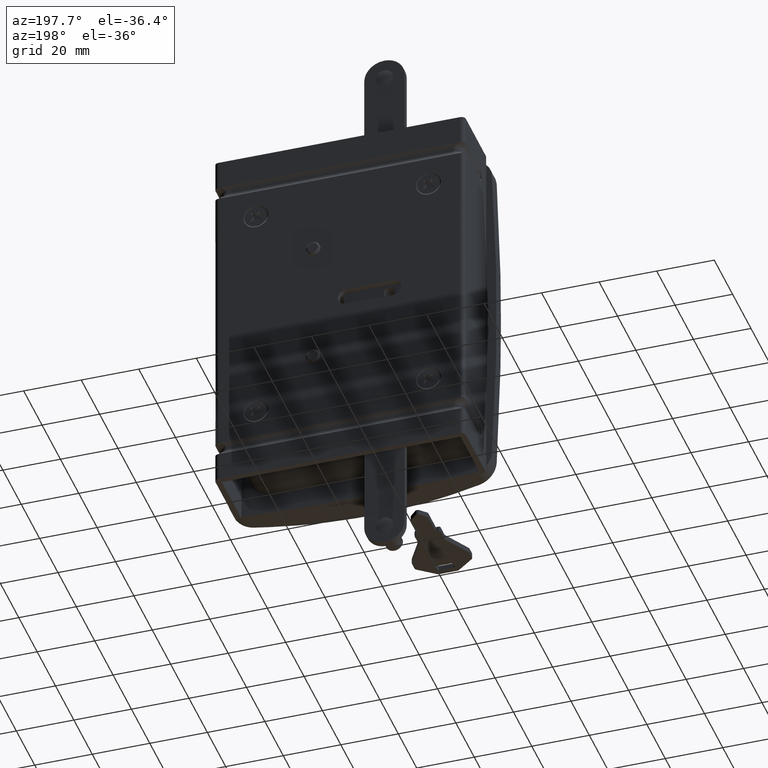
[diagram: clean part render]
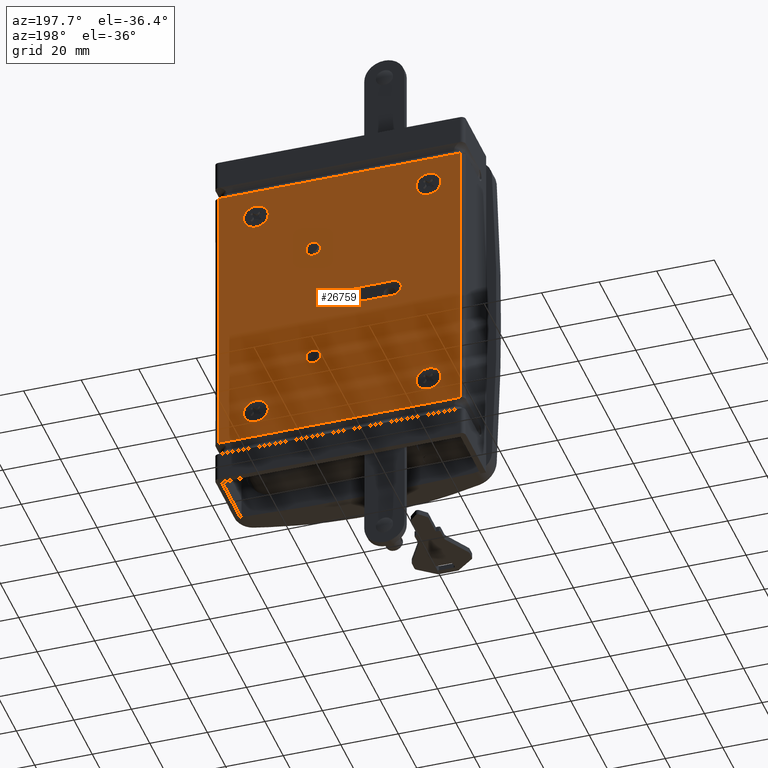
[diagram: same view with one face highlighted and labeled with its STEP entity id]
A machine part, auxiliary view. The second image highlights one B-rep face of the part: STEP entity #26759.
In plain terms, the highlighted face is a freeform B-spline surface patch.
Its self-contained STEP definition (entity closure, byte-faithful):
#16250=CARTESIAN_POINT('',(19.081600212873330,23.999999425808870,-42.998950786445349));
#16251=VERTEX_POINT('',#16250);
#16257=CARTESIAN_POINT('',(16.000007999999902,24.0,-44.299992000000110));
#16258=VERTEX_POINT('',#16257);
#16259=CARTESIAN_POINT('',(16.000007999999902,24.0,-44.299992000000110));
#16260=CARTESIAN_POINT('',(16.608504569310259,23.999999886619250,-44.300706942005988));
#16261=CARTESIAN_POINT('',(17.752993200122820,23.999999673367309,-44.052696056254739));
#16262=CARTESIAN_POINT('',(18.707482801743730,23.999999495517962,-43.384016632717334));
#16263=CARTESIAN_POINT('',(19.081600212873330,23.999999425808870,-42.998950786445349));
#16264=B_SPLINE_CURVE_WITH_KNOTS('',3,(#16259,#16260,#16261,#16262,#16263),.UNSPECIFIED.,.F.,.U.,(4,1,4),(0.000000117001141,1.825205551602599,3.435732488437136),.UNSPECIFIED.);
#16265=EDGE_CURVE('',#16258,#16251,#16264,.T.);
#16267=CARTESIAN_POINT('',(11.700016000002250,24.0,-40.000004595225271));
#16268=VERTEX_POINT('',#16267);
#16269=CARTESIAN_POINT('',(11.700016000002250,24.0,-40.000004595225271));
#16270=CARTESIAN_POINT('',(11.699769245986030,24.0,-40.457356202526903));
#16271=CARTESIAN_POINT('',(11.830341173214499,24.0,-41.266336455729821));
#16272=CARTESIAN_POINT('',(12.300203310018240,24.000000000000021,-42.259622951784621));
#16273=CARTESIAN_POINT('',(12.865675120396460,23.999999999999989,-42.984145517145492));
#16274=CARTESIAN_POINT('',(13.481328835185129,23.999999999999929,-43.515126568486920));
#16275=CARTESIAN_POINT('',(14.487929454984901,24.000000000000060,-44.102186326536788));
#16276=CARTESIAN_POINT('',(15.366564817435490,24.000000000000021,-44.300976502458532));
#16277=CARTESIAN_POINT('',(16.000007999999902,24.0,-44.299992000000110));
#16278=B_SPLINE_CURVE_WITH_KNOTS('',3,(#16269,#16270,#16271,#16272,#16273,#16274,#16275,#16276,#16277),.UNSPECIFIED.,.F.,.U.,(4,1,1,1,1,1,4),(0.000000449724871,1.372012814146990,2.427441721544624,3.271811058827370,4.116011931907602,4.854850622517113,6.754578543974938),.UNSPECIFIED.);
#16279=EDGE_CURVE('',#16268,#16258,#16278,.T.);
#16281=CARTESIAN_POINT('',(16.000007999999902,24.0,-35.700007999999897));
#16282=VERTEX_POINT('',#16281);
#16283=CARTESIAN_POINT('',(16.000007999999902,24.0,-35.700007999999897));
#16284=CARTESIAN_POINT('',(15.437033696385059,23.999999999999979,-35.699362724556330));
#16285=CARTESIAN_POINT('',(14.487698748199101,24.000000000000039,-35.889342444329984));
#16286=CARTESIAN_POINT('',(13.414239841961290,23.999999999999979,-36.515060229681232));
#16287=CARTESIAN_POINT('',(12.671822633921670,24.000000000000021,-37.221980658092853));
#16288=CARTESIAN_POINT('',(12.120355998093951,23.999999999999929,-38.047119599238172));
#16289=CARTESIAN_POINT('',(11.774141216430831,24.000000000000270,-39.015005355303167));
#16290=CARTESIAN_POINT('',(11.699967382575000,23.999999999999670,-39.683392306625898));
#16291=CARTESIAN_POINT('',(11.700016000002250,24.0,-40.000004595225271));
#16292=B_SPLINE_CURVE_WITH_KNOTS('',3,(#16283,#16284,#16285,#16286,#16287,#16288,#16289,#16290,#16291),.UNSPECIFIED.,.F.,.U.,(4,1,1,1,1,1,4),(0.000000443436760,1.688646263203399,2.849600862413826,3.693834159019790,4.749305504196174,5.804735222866979,6.754583723994106),.UNSPECIFIED.);
#16293=EDGE_CURVE('',#16282,#16268,#16292,.T.);
#16295=CARTESIAN_POINT('',(19.170295915714888,24.000000572217189,-37.094966352223338));
#16296=VERTEX_POINT('',#16295);
#16297=CARTESIAN_POINT('',(19.170295915714888,24.000000572217189,-37.094966352223338));
#16298=CARTESIAN_POINT('',(18.794351925051000,24.000000504361619,-36.683839148798540));
#16299=CARTESIAN_POINT('',(17.818720762560439,24.000000328266420,-35.966864022227902));
#16300=CARTESIAN_POINT('',(16.631452311078231,24.000000113971659,-35.699001254602571));
#16301=CARTESIAN_POINT('',(16.000007999999902,24.0,-35.700007999999897));
#16302=B_SPLINE_CURVE_WITH_KNOTS('',3,(#16297,#16298,#16299,#16300,#16301),.UNSPECIFIED.,.F.,.U.,(4,1,4),(0.000000098195259,1.671073141773000,3.564928744291270),.UNSPECIFIED.);
#16303=EDGE_CURVE('',#16296,#16282,#16302,.T.);
#16381=CARTESIAN_POINT('',(20.299999999997549,24.0,-39.999995404774751));
#16382=VERTEX_POINT('',#16381);
#16383=CARTESIAN_POINT('',(20.299999999997549,24.0,-39.999995404774751));
#16384=CARTESIAN_POINT('',(20.300330753014780,24.000000098177289,-39.501568900500111));
#16385=CARTESIAN_POINT('',(20.113002985007661,24.000000307542781,-38.438664186191289));
#16386=CARTESIAN_POINT('',(19.552397077734959,24.000000490262551,-37.511032607201862));
#16387=CARTESIAN_POINT('',(19.170295915714888,24.000000572217189,-37.094966352223338));
#16388=B_SPLINE_CURVE_WITH_KNOTS('',3,(#16383,#16384,#16385,#16386,#16387),.UNSPECIFIED.,.F.,.U.,(4,1,4),(0.000000109142984,1.495180628605630,3.189650709346401),.UNSPECIFIED.);
#16389=EDGE_CURVE('',#16382,#16296,#16388,.T.);
#16391=CARTESIAN_POINT('',(19.081600212873330,23.999999425808870,-42.998950786445349));
#16392=CARTESIAN_POINT('',(19.492039054457099,23.999999506371150,-42.578180159908257));
#16393=CARTESIAN_POINT('',(20.097356236605560,23.999999688957018,-41.624547918623428));
#16394=CARTESIAN_POINT('',(20.300420818699330,23.999999900703330,-40.518613832927826));
#16395=CARTESIAN_POINT('',(20.299999999997549,24.0,-39.999995404774751));
#16396=B_SPLINE_CURVE_WITH_KNOTS('',3,(#16391,#16392,#16393,#16394,#16395),.UNSPECIFIED.,.F.,.U.,(4,1,4),(0.000000098679906,1.763115466798221,3.318852038713244),.UNSPECIFIED.);
#16397=EDGE_CURVE('',#16251,#16382,#16396,.T.);
#16634=CARTESIAN_POINT('',(19.081600212873319,23.999999425808859,37.001049213554651));
#16635=VERTEX_POINT('',#16634);
#16641=CARTESIAN_POINT('',(16.000007999999902,24.0,35.700007999999897));
#16642=VERTEX_POINT('',#16641);
#16643=CARTESIAN_POINT('',(16.000007999999902,24.0,35.700007999999897));
#16644=CARTESIAN_POINT('',(16.536912110443350,23.999999899959001,35.699508383571732));
#16645=CARTESIAN_POINT('',(17.681677439034591,23.999999686655560,35.917453593999191));
#16646=CARTESIAN_POINT('',(18.657811480739682,23.999999504773161,36.564339703111777));
#16647=CARTESIAN_POINT('',(19.081600212873319,23.999999425808859,37.001049213554651));
#16648=B_SPLINE_CURVE_WITH_KNOTS('',3,(#16643,#16644,#16645,#16646,#16647),.UNSPECIFIED.,.F.,.U.,(4,1,4),(0.000000117001895,1.610527053837133,3.435732488437125),.UNSPECIFIED.);
#16649=EDGE_CURVE('',#16642,#16635,#16648,.T.);
#16651=CARTESIAN_POINT('',(11.700016000002250,24.0,39.999995404774729));
#16652=VERTEX_POINT('',#16651);
#16653=CARTESIAN_POINT('',(11.700016000002250,24.0,39.999995404774729));
#16654=CARTESIAN_POINT('',(11.699876371735780,24.000000000000050,39.613015073000987));
#16655=CARTESIAN_POINT('',(11.800431712729621,23.999999999999950,38.874318748778357));
#16656=CARTESIAN_POINT('',(12.193762840690249,23.999999999999961,37.924624882840483));
#16657=CARTESIAN_POINT('',(12.723054032028710,23.999999999999989,37.173226833670078));
#16658=CARTESIAN_POINT('',(13.337471631690009,24.000000000000028,36.588249823394143));
#16659=CARTESIAN_POINT('',(14.113933401104120,23.999999999999901,36.096510675547002));
#16660=CARTESIAN_POINT('',(15.014992228437761,24.000000000000249,35.774108869357612));
#16661=CARTESIAN_POINT('',(15.683397894057119,23.999999999999751,35.699965607428858));
#16662=CARTESIAN_POINT('',(16.000007999999902,24.0,35.700007999999897));
#16663=B_SPLINE_CURVE_WITH_KNOTS('',3,(#16653,#16654,#16655,#16656,#16657,#16658,#16659,#16660,#16661,#16662),.UNSPECIFIED.,.F.,.U.,(4,1,1,1,1,1,1,4),(0.000000449723927,1.160911702834002,2.216378244868959,3.060747668424331,3.904980314528047,4.749301858948915,5.804730767551569,6.754578543975010),.UNSPECIFIED.);
#16664=EDGE_CURVE('',#16652,#16642,#16663,.T.);
#16666=CARTESIAN_POINT('',(16.000007999999902,24.0,44.299992000000110));
#16667=VERTEX_POINT('',#16666);
#16668=CARTESIAN_POINT('',(16.000007999999902,24.0,44.299992000000110));
#16669=CARTESIAN_POINT('',(15.683399258670480,24.0,44.300033586786277));
#16670=CARTESIAN_POINT('',(15.014989062574220,24.000000000000011,44.225890748885462));
#16671=CARTESIAN_POINT('',(14.113935042229761,24.000000000000028,43.903484044756652));
#16672=CARTESIAN_POINT('',(13.337485156308960,23.999999999999972,43.411735523836171));
#16673=CARTESIAN_POINT('',(12.646186061141091,24.000000000000028,42.753688811466297));
#16674=CARTESIAN_POINT('',(11.929673321275001,24.000000000000011,41.652715793512613));
#16675=CARTESIAN_POINT('',(11.699002721618490,23.999999999999940,40.633422873761411));
#16676=CARTESIAN_POINT('',(11.700016000002250,24.0,39.999995404774729));
#16677=B_SPLINE_CURVE_WITH_KNOTS('',3,(#16668,#16669,#16670,#16671,#16672,#16673,#16674,#16675,#16676),.UNSPECIFIED.,.F.,.U.,(4,1,1,1,1,1,4),(0.000000443440082,0.949848947453765,2.005278665737909,2.849600862416103,3.693834159021625,4.854854342551088,6.754583723994090),.UNSPECIFIED.);
#16678=EDGE_CURVE('',#16667,#16652,#16677,.T.);
#16680=CARTESIAN_POINT('',(19.170295915714888,24.000000572217189,42.905033647776662));
#16681=VERTEX_POINT('',#16680);
#16682=CARTESIAN_POINT('',(19.170295915714888,24.000000572217189,42.905033647776662));
#16683=CARTESIAN_POINT('',(18.794354794896812,24.000000504362159,43.316164465794131));
#16684=CARTESIAN_POINT('',(17.818717807048220,24.000000328265781,44.033131667335397));
#16685=CARTESIAN_POINT('',(16.631453857227299,24.000000113972028,44.301000535890942));
#16686=CARTESIAN_POINT('',(16.000007999999902,24.0,44.299992000000110));
#16687=B_SPLINE_CURVE_WITH_KNOTS('',3,(#16682,#16683,#16684,#16685,#16686),.UNSPECIFIED.,.F.,.U.,(4,1,4),(0.000000098197451,1.671073141773892,3.564928744291260),.UNSPECIFIED.);
#16688=EDGE_CURVE('',#16681,#16667,#16687,.T.);
#16767=CARTESIAN_POINT('',(20.299999999997549,24.0,40.000004595225249));
#16768=VERTEX_POINT('',#16767);
#16769=CARTESIAN_POINT('',(20.299999999997549,24.0,40.000004595225249));
#16770=CARTESIAN_POINT('',(20.301031519506061,24.000000124385050,40.631482290668387));
#16771=CARTESIAN_POINT('',(20.061304043517840,24.000000333604351,41.693645673187952));
#16772=CARTESIAN_POINT('',(19.462229170296961,24.000000509512361,42.586694364829349));
#16773=CARTESIAN_POINT('',(19.170295915714888,24.000000572217189,42.905033647776662));
#16774=B_SPLINE_CURVE_WITH_KNOTS('',3,(#16769,#16770,#16771,#16772,#16773),.UNSPECIFIED.,.F.,.U.,(4,1,4),(0.000000109143278,1.893833363966751,3.189650709346410),.UNSPECIFIED.);
#16775=EDGE_CURVE('',#16768,#16681,#16774,.T.);
#16777=CARTESIAN_POINT('',(19.081600212873319,23.999999425808859,37.001049213554651));
#16778=CARTESIAN_POINT('',(19.492103952600839,23.999999506363110,37.421778316908821));
#16779=CARTESIAN_POINT('',(20.097281285320911,23.999999688965751,38.375496960843179));
#16780=CARTESIAN_POINT('',(20.300436504232330,23.999999900700939,39.481373895774077));
#16781=CARTESIAN_POINT('',(20.299999999997549,24.0,40.000004595225249));
#16782=B_SPLINE_CURVE_WITH_KNOTS('',3,(#16777,#16778,#16779,#16780,#16781),.UNSPECIFIED.,.F.,.U.,(4,1,4),(0.000000098683397,1.763115466799140,3.318852038713238),.UNSPECIFIED.);
#16783=EDGE_CURVE('',#16635,#16768,#16782,.T.);
#17022=CARTESIAN_POINT('',(72.716723318257266,24.000000865716050,-37.223313109760582));
#17023=VERTEX_POINT('',#17022);
#17029=CARTESIAN_POINT('',(76.000007999999895,24.0,-35.700007999999897));
#17030=VERTEX_POINT('',#17029);
#17031=CARTESIAN_POINT('',(72.716723318257266,24.000000865716050,-37.223313109760582));
#17032=CARTESIAN_POINT('',(72.993024737822736,24.000000792862600,-36.896332292719208));
#17033=CARTESIAN_POINT('',(73.555546476563478,24.000000644540471,-36.403874161930709));
#17034=CARTESIAN_POINT('',(74.677147232063746,24.000000348803560,-35.846010619489498));
#17035=CARTESIAN_POINT('',(75.494032296616552,24.000000133412680,-35.699593147991180));
#17036=CARTESIAN_POINT('',(76.000007999999895,24.0,-35.700007999999897));
#17037=B_SPLINE_CURVE_WITH_KNOTS('',3,(#17031,#17032,#17033,#17034,#17035,#17036),.UNSPECIFIED.,.F.,.U.,(4,1,1,4),(0.000000123678769,1.284254360355584,2.218190360326647,3.735955602659553),.UNSPECIFIED.);
#17038=EDGE_CURVE('',#17023,#17030,#17037,.T.);
#17040=CARTESIAN_POINT('',(80.299999999997539,24.0,-40.000004595225249));
#17041=VERTEX_POINT('',#17040);
#17042=CARTESIAN_POINT('',(76.000007999999895,24.0,-35.700007999999897));
#17043=CARTESIAN_POINT('',(76.633449912016545,23.999999999999979,-35.699027645973679));
#17044=CARTESIAN_POINT('',(77.512090424734509,24.000000000000060,-35.897814685968378));
#17045=CARTESIAN_POINT('',(78.518674246789843,23.999999999999950,-36.484889131929179));
#17046=CARTESIAN_POINT('',(79.241517106496161,24.000000000000071,-37.108133367207223));
#17047=CARTESIAN_POINT('',(79.855833950128783,23.999999999999812,-37.980344231449457));
#17048=CARTESIAN_POINT('',(80.225879856664932,23.999999999999929,-39.015000892402767));
#17049=CARTESIAN_POINT('',(80.300043587311038,24.000000000000131,-39.683394400038360));
#17050=CARTESIAN_POINT('',(80.299999999997539,24.0,-40.000004595225249));
#17051=B_SPLINE_CURVE_WITH_KNOTS('',3,(#17042,#17043,#17044,#17045,#17046,#17047,#17048,#17049,#17050),.UNSPECIFIED.,.F.,.U.,(4,1,1,1,1,1,4),(0.000000443428833,1.899729823763277,2.638569077994007,3.482770604614954,4.749305504194488,5.804735222866309,6.754583723994148),.UNSPECIFIED.);
#17052=EDGE_CURVE('',#17030,#17041,#17051,.T.);
#17054=CARTESIAN_POINT('',(76.000007999999895,24.0,-44.299992000000103));
#17055=VERTEX_POINT('',#17054);
#17056=CARTESIAN_POINT('',(80.299999999997539,24.0,-40.000004595225249));
#17057=CARTESIAN_POINT('',(80.300112195429520,24.0,-40.386970448821117));
#17058=CARTESIAN_POINT('',(80.190122804850503,23.999999999999979,-41.196081217993090));
#17059=CARTESIAN_POINT('',(79.743414227736778,23.999999999999989,-42.203923886287633));
#17060=CARTESIAN_POINT('',(79.134320857614227,23.999999999999989,-42.984137032440437));
#17061=CARTESIAN_POINT('',(78.465179511973503,24.000000000000011,-43.561353013077742));
#17062=CARTESIAN_POINT('',(77.441979023866025,24.000000000000082,-44.124739316046920));
#17063=CARTESIAN_POINT('',(76.562983759444904,23.999999999999911,-44.300592008612398));
#17064=CARTESIAN_POINT('',(76.000007999999895,24.0,-44.299992000000103));
#17065=B_SPLINE_CURVE_WITH_KNOTS('',3,(#17056,#17057,#17058,#17059,#17060,#17061,#17062,#17063,#17064),.UNSPECIFIED.,.F.,.U.,(4,1,1,1,1,1,4),(0.000000449728873,1.160911702837337,2.427441721545610,3.271811058827449,4.116011931906986,5.065934018031542,6.754578543975025),.UNSPECIFIED.);
#17066=EDGE_CURVE('',#17041,#17055,#17065,.T.);
#17068=CARTESIAN_POINT('',(73.040090015907978,23.999999426383940,-43.119102744099592));
#17069=VERTEX_POINT('',#17068);
#17070=CARTESIAN_POINT('',(76.000007999999895,24.0,-44.299992000000103));
#17071=CARTESIAN_POINT('',(75.489852952202540,23.999999901134700,-44.300324079917701));
#17072=CARTESIAN_POINT('',(74.401953256567751,23.999999690305689,-44.104030875689531));
#17073=CARTESIAN_POINT('',(73.459033847107705,23.999999507572969,-43.517588705208297));
#17074=CARTESIAN_POINT('',(73.040090015907978,23.999999426383940,-43.119102744099592));
#17075=B_SPLINE_CURVE_WITH_KNOTS('',3,(#17070,#17071,#17072,#17073,#17074),.UNSPECIFIED.,.F.,.U.,(4,1,4),(0.000000122381804,1.530366106484122,3.264708191472217),.UNSPECIFIED.);
#17076=EDGE_CURVE('',#17055,#17069,#17075,.T.);
#17155=CARTESIAN_POINT('',(71.700016000002236,24.0,-39.999995404774737));
#17156=VERTEX_POINT('',#17155);
#17157=CARTESIAN_POINT('',(73.040090015907978,23.999999426383940,-43.119102744099592));
#17158=CARTESIAN_POINT('',(72.644125116462661,23.999999495351211,-42.744084480961973));
#17159=CARTESIAN_POINT('',(71.955549121440583,23.999999672562311,-41.780477446399708));
#17160=CARTESIAN_POINT('',(71.699090345630054,23.999999886322421,-40.618130886398347));
#17161=CARTESIAN_POINT('',(71.700016000002236,24.0,-39.999995404774737));
#17162=B_SPLINE_CURVE_WITH_KNOTS('',3,(#17157,#17158,#17159,#17160,#17161),.UNSPECIFIED.,.F.,.U.,(4,1,4),(0.000000126625273,1.635908475482652,3.489876749574304),.UNSPECIFIED.);
#17163=EDGE_CURVE('',#17069,#17156,#17162,.T.);
#17165=CARTESIAN_POINT('',(71.700016000002236,24.0,-39.999995404774737));
#17166=CARTESIAN_POINT('',(71.699232434373812,24.000000186311912,-39.402422186603069));
#17167=CARTESIAN_POINT('',(71.913342045890900,24.000000499783209,-38.396998388517240));
#17168=CARTESIAN_POINT('',(72.452666340842683,24.000000768429711,-37.535347755886491));
#17169=CARTESIAN_POINT('',(72.716723318257266,24.000000865716050,-37.223313109760582));
#17170=B_SPLINE_CURVE_WITH_KNOTS('',3,(#17165,#17166,#17167,#17168,#17169),.UNSPECIFIED.,.F.,.U.,(4,1,4),(0.000000083031577,1.792292389107161,3.018628234792011),.UNSPECIFIED.);
#17171=EDGE_CURVE('',#17156,#17023,#17170,.T.);
#17404=CARTESIAN_POINT('',(79.081600212873312,23.999999425808859,37.001049213554658));
#17405=VERTEX_POINT('',#17404);
#17411=CARTESIAN_POINT('',(76.000007999999895,24.0,35.700007999999897));
#17412=VERTEX_POINT('',#17411);
#17413=CARTESIAN_POINT('',(76.000007999999895,24.0,35.700007999999897));
#17414=CARTESIAN_POINT('',(76.536910649964994,23.999999899959288,35.699503827510583));
#17415=CARTESIAN_POINT('',(77.681677761341831,23.999999686655510,35.917461385189483));
#17416=CARTESIAN_POINT('',(78.657812820498393,23.999999504772902,36.564335028179570));
#17417=CARTESIAN_POINT('',(79.081600212873312,23.999999425808859,37.001049213554658));
#17418=B_SPLINE_CURVE_WITH_KNOTS('',3,(#17413,#17414,#17415,#17416,#17417),.UNSPECIFIED.,.F.,.U.,(4,1,4),(0.000000117002894,1.610527053837449,3.435732488437113),.UNSPECIFIED.);
#17419=EDGE_CURVE('',#17412,#17405,#17418,.T.);
#17421=CARTESIAN_POINT('',(71.700016000002236,24.0,39.999995404774737));
#17422=VERTEX_POINT('',#17421);
#17423=CARTESIAN_POINT('',(71.700016000002236,24.0,39.999995404774737));
#17424=CARTESIAN_POINT('',(71.699020250344446,23.999999999999989,39.366577704062848));
#17425=CARTESIAN_POINT('',(71.929642864896394,24.000000000000011,38.347257051105302));
#17426=CARTESIAN_POINT('',(72.646205019733941,23.999999999999989,37.246322127656640));
#17427=CARTESIAN_POINT('',(73.414265565441184,24.000000000000050,36.515084122377381));
#17428=CARTESIAN_POINT('',(74.487676130210758,23.999999999999851,35.889299201409223));
#17429=CARTESIAN_POINT('',(75.437042923489528,24.000000000000181,35.699381378121721));
#17430=CARTESIAN_POINT('',(76.000007999999895,24.0,35.700007999999897));
#17431=B_SPLINE_CURVE_WITH_KNOTS('',3,(#17423,#17424,#17425,#17426,#17427,#17428,#17429,#17430),.UNSPECIFIED.,.F.,.U.,(4,1,1,1,1,4),(0.000000449731469,1.899728372300086,3.060747668427550,3.904980314530159,5.065934018033046,6.754578543974950),.UNSPECIFIED.);
#17432=EDGE_CURVE('',#17422,#17412,#17431,.T.);
#17434=CARTESIAN_POINT('',(76.000007999999895,24.0,44.299992000000103));
#17435=VERTEX_POINT('',#17434);
#17436=CARTESIAN_POINT('',(76.000007999999895,24.0,44.299992000000103));
#17437=CARTESIAN_POINT('',(75.437006432476579,23.999999999999979,44.300632468922323));
#17438=CARTESIAN_POINT('',(74.698732271841934,24.000000000000021,44.152831123165477));
#17439=CARTESIAN_POINT('',(73.590029914954471,24.000000000000028,43.611830669789740));
#17440=CARTESIAN_POINT('',(72.706910205766619,23.999999999999989,42.887132911216732));
#17441=CARTESIAN_POINT('',(71.903271954621658,24.0,41.582748015839449));
#17442=CARTESIAN_POINT('',(71.699433061556078,24.000000000000060,40.562925314831617));
#17443=CARTESIAN_POINT('',(71.700016000002236,24.0,39.999995404774737));
#17444=B_SPLINE_CURVE_WITH_KNOTS('',3,(#17436,#17437,#17438,#17439,#17440,#17441,#17442,#17443),.UNSPECIFIED.,.F.,.U.,(4,1,1,1,1,4),(0.000000443442652,1.688646263207300,2.216379938476737,3.693834159021955,5.065937906235879,6.754583723994028),.UNSPECIFIED.);
#17445=EDGE_CURVE('',#17435,#17422,#17444,.T.);
#17447=CARTESIAN_POINT('',(79.170295915714888,24.000000572217189,42.905033647776662));
#17448=VERTEX_POINT('',#17447);
#17449=CARTESIAN_POINT('',(79.170295915714888,24.000000572217189,42.905033647776662));
#17450=CARTESIAN_POINT('',(78.794346540711132,24.000000504360688,43.316140055226242));
#17451=CARTESIAN_POINT('',(77.818752288021855,24.000000328271991,44.033241235532209));
#17452=CARTESIAN_POINT('',(76.631431314670124,24.000000113967950,44.300905760524557));
#17453=CARTESIAN_POINT('',(76.000007999999895,24.0,44.299992000000103));
#17454=B_SPLINE_CURVE_WITH_KNOTS('',3,(#17449,#17450,#17451,#17452,#17453),.UNSPECIFIED.,.F.,.U.,(4,1,4),(0.000000098194217,1.671073141772194,3.564928744291257),.UNSPECIFIED.);
#17455=EDGE_CURVE('',#17448,#17435,#17454,.T.);
#17534=CARTESIAN_POINT('',(80.299999999997539,24.0,40.000004595225249));
#17535=VERTEX_POINT('',#17534);
#17536=CARTESIAN_POINT('',(80.299999999997539,24.0,40.000004595225249));
#17537=CARTESIAN_POINT('',(80.301032892253332,24.000000124384641,40.631480552332647));
#17538=CARTESIAN_POINT('',(80.061302822316733,24.000000333604682,41.693647025279269));
#17539=CARTESIAN_POINT('',(79.462229385405820,24.000000509512290,42.586694016003896));
#17540=CARTESIAN_POINT('',(79.170295915714888,24.000000572217189,42.905033647776662));
#17541=B_SPLINE_CURVE_WITH_KNOTS('',3,(#17536,#17537,#17538,#17539,#17540),.UNSPECIFIED.,.F.,.U.,(4,1,4),(0.000000109143252,1.893833363966682,3.189650709346398),.UNSPECIFIED.);
#17542=EDGE_CURVE('',#17535,#17448,#17541,.T.);
#17544=CARTESIAN_POINT('',(79.081600212873312,23.999999425808859,37.001049213554658));
#17545=CARTESIAN_POINT('',(79.443604338742475,23.999999496913581,37.372423759867637));
#17546=CARTESIAN_POINT('',(80.069390148177746,23.999999675777410,38.306615936633030));
#17547=CARTESIAN_POINT('',(80.300685411204455,23.999999887457552,39.412204480323453));
#17548=CARTESIAN_POINT('',(80.299999999997539,24.0,40.000004595225249));
#17549=B_SPLINE_CURVE_WITH_KNOTS('',3,(#17544,#17545,#17546,#17547,#17548),.UNSPECIFIED.,.F.,.U.,(4,1,4),(0.000000098681406,1.555736670581686,3.318852038713235),.UNSPECIFIED.);
#17550=EDGE_CURVE('',#17405,#17535,#17549,.T.);
#17774=CARTESIAN_POINT('',(54.385645256998842,24.000000000002242,24.064533454913139));
#17775=VERTEX_POINT('',#17774);
#17776=CARTESIAN_POINT('',(53.500000000000007,24.0,22.155644151972741));
#17777=VERTEX_POINT('',#17776);
#17778=CARTESIAN_POINT('',(54.385645256998842,24.000000000002242,24.064533454913139));
#17779=CARTESIAN_POINT('',(54.160893316507931,24.000000000002050,23.874745878269419));
#17780=CARTESIAN_POINT('',(53.853187668932037,24.000000000001570,23.503091205549161));
#17781=CARTESIAN_POINT('',(53.564750882448742,24.000000000000821,22.834339740261740));
#17782=CARTESIAN_POINT('',(53.499886479541573,24.000000000000298,22.404535886207050));
#17783=CARTESIAN_POINT('',(53.500000000000007,24.0,22.155644151972741));
#17784=B_SPLINE_CURVE_WITH_KNOTS('',3,(#17778,#17779,#17780,#17781,#17782,#17783),.UNSPECIFIED.,.F.,.U.,(4,1,1,4),(0.000000181318516,0.882412076614789,1.425402291165073,2.172071105855785),.UNSPECIFIED.);
#17785=EDGE_CURVE('',#17775,#17777,#17784,.T.);
#17838=CARTESIAN_POINT('',(57.813435559456053,23.999999999997030,23.876530771985450));
#17839=VERTEX_POINT('',#17838);
#17845=CARTESIAN_POINT('',(58.499999999999993,24.0,22.155643848027260));
#17846=VERTEX_POINT('',#17845);
#17847=CARTESIAN_POINT('',(58.499999999999993,24.0,22.155643848027260));
#17848=CARTESIAN_POINT('',(58.500820283796152,23.999999999999311,22.551246833735579));
#17849=CARTESIAN_POINT('',(58.346531793354693,23.999999999998220,23.183094469004960));
#17850=CARTESIAN_POINT('',(57.976797302305627,23.999999999997339,23.704470697505329));
#17851=CARTESIAN_POINT('',(57.813435559456053,23.999999999997030,23.876530771985450));
#17852=B_SPLINE_CURVE_WITH_KNOTS('',3,(#17847,#17848,#17849,#17850,#17851),.UNSPECIFIED.,.F.,.U.,(4,1,4),(0.000000118121943,1.186285226617747,1.898090701324828),.UNSPECIFIED.);
#17853=EDGE_CURVE('',#17846,#17839,#17852,.T.);
#17855=CARTESIAN_POINT('',(56.0,24.0,19.655643999999999));
#17856=VERTEX_POINT('',#17855);
#17857=CARTESIAN_POINT('',(56.0,24.0,19.655643999999999));
#17858=CARTESIAN_POINT('',(56.409256549990047,24.000000000000099,19.654742566969421));
#17859=CARTESIAN_POINT('',(57.103716272572584,23.999999999999829,19.830342083432079));
#17860=CARTESIAN_POINT('',(57.872828954362738,24.000000000000199,20.430589903294049));
#17861=CARTESIAN_POINT('',(58.369841810586323,23.999999999999641,21.194617370239289));
#17862=CARTESIAN_POINT('',(58.500432734255057,24.000000000000139,21.807884337465229));
#17863=CARTESIAN_POINT('',(58.499999999999993,24.0,22.155643848027260));
#17864=B_SPLINE_CURVE_WITH_KNOTS('',3,(#17857,#17858,#17859,#17860,#17861,#17862,#17863),.UNSPECIFIED.,.F.,.U.,(4,1,1,1,4),(0.000000618062121,1.227228816075028,2.086207397878340,2.883953125821316,3.927089275295205),.UNSPECIFIED.);
#17865=EDGE_CURVE('',#17856,#17846,#17864,.T.);
#17867=CARTESIAN_POINT('',(53.500000000000007,24.0,22.155644151972741));
#17868=CARTESIAN_POINT('',(53.499473227172572,24.000000000000039,21.787391238821041));
#17869=CARTESIAN_POINT('',(53.656418008253091,24.0,21.092484842194061));
#17870=CARTESIAN_POINT('',(54.227683780307707,23.999999999999890,20.322091154917729));
#17871=CARTESIAN_POINT('',(55.018676251219908,24.000000000000149,19.793796538487221));
#17872=CARTESIAN_POINT('',(55.631735744693849,23.999999999999979,19.655066873825579));
#17873=CARTESIAN_POINT('',(56.0,24.0,19.655643999999999));
#17874=B_SPLINE_CURVE_WITH_KNOTS('',3,(#17867,#17868,#17869,#17870,#17871,#17872,#17873),.UNSPECIFIED.,.F.,.U.,(4,1,1,1,4),(0.000000617851918,1.104505249199162,2.086207489300131,2.822584815376279,3.927089446608181),.UNSPECIFIED.);
#17875=EDGE_CURVE('',#17777,#17856,#17874,.T.);
#17894=CARTESIAN_POINT('',(56.0,24.0,24.655643999999999));
#17895=VERTEX_POINT('',#17894);
#17896=CARTESIAN_POINT('',(56.0,24.0,24.655643999999999));
#17897=CARTESIAN_POINT('',(55.670873590389050,24.000000000000441,24.656039673461080));
#17898=CARTESIAN_POINT('',(55.086236065126528,24.000000000001311,24.538296795369540));
#17899=CARTESIAN_POINT('',(54.580997317128677,24.000000000001972,24.229907818229321));
#17900=CARTESIAN_POINT('',(54.385645256998842,24.000000000002242,24.064533454913139));
#17901=B_SPLINE_CURVE_WITH_KNOTS('',3,(#17896,#17897,#17898,#17899,#17900),.UNSPECIFIED.,.F.,.U.,(4,1,4),(0.000000100617246,0.987186586866316,1.755021463443618),.UNSPECIFIED.);
#17902=EDGE_CURVE('',#17895,#17775,#17901,.T.);
#17904=CARTESIAN_POINT('',(57.813435559456053,23.999999999997030,23.876530771985450));
#17905=CARTESIAN_POINT('',(57.551941768453709,23.999999999997449,24.152986482647101));
#17906=CARTESIAN_POINT('',(56.972120732401279,23.999999999998440,24.534224421912850));
#17907=CARTESIAN_POINT('',(56.295906655672127,23.999999999999488,24.655817029532830));
#17908=CARTESIAN_POINT('',(56.0,24.0,24.655643999999999));
#17909=B_SPLINE_CURVE_WITH_KNOTS('',3,(#17904,#17905,#17906,#17907,#17908),.UNSPECIFIED.,.F.,.U.,(4,1,4),(0.000000164699144,1.141283567012978,2.028999109085219),.UNSPECIFIED.);
#17910=EDGE_CURVE('',#17839,#17895,#17909,.T.);
#17961=CARTESIAN_POINT('',(54.385645256998842,24.000000000002242,-20.246754545086858));
#17962=VERTEX_POINT('',#17961);
#17963=CARTESIAN_POINT('',(53.500000000000007,24.0,-22.155643848027260));
#17964=VERTEX_POINT('',#17963);
#17965=CARTESIAN_POINT('',(54.385645256998842,24.000000000002242,-20.246754545086858));
#17966=CARTESIAN_POINT('',(54.160894216303227,24.000000000002021,-20.436540566069311));
#17967=CARTESIAN_POINT('',(53.853187203304913,24.000000000001620,-20.808198100990801));
#17968=CARTESIAN_POINT('',(53.564751176530429,24.000000000000760,-21.476947053440419));
#17969=CARTESIAN_POINT('',(53.499886240338647,24.000000000000330,-21.906752355562141));
#17970=CARTESIAN_POINT('',(53.500000000000007,24.0,-22.155643848027260));
#17971=B_SPLINE_CURVE_WITH_KNOTS('',3,(#17965,#17966,#17967,#17968,#17969,#17970),.UNSPECIFIED.,.F.,.U.,(4,1,1,4),(0.000000181319426,0.882412076615061,1.425402291165170,2.172071105855794),.UNSPECIFIED.);
#17972=EDGE_CURVE('',#17962,#17964,#17971,.T.);
#18026=CARTESIAN_POINT('',(57.813435559456039,23.999999999997030,-20.434757228014551));
#18027=VERTEX_POINT('',#18026);
#18033=CARTESIAN_POINT('',(58.499999999999993,24.0,-22.155644151972741));
#18034=VERTEX_POINT('',#18033);
#18035=CARTESIAN_POINT('',(58.499999999999993,24.0,-22.155644151972741));
#18036=CARTESIAN_POINT('',(58.500999510690882,23.999999999999289,-21.740202689505189));
#18037=CARTESIAN_POINT('',(58.338564121980063,23.999999999998220,-21.108562347070439));
#18038=CARTESIAN_POINT('',(57.963151628518823,23.999999999997311,-20.592489524397330));
#18039=CARTESIAN_POINT('',(57.813435559456039,23.999999999997030,-20.434757228014551));
#18040=B_SPLINE_CURVE_WITH_KNOTS('',3,(#18035,#18036,#18037,#18038,#18039),.UNSPECIFIED.,.F.,.U.,(4,1,4),(0.000000118120655,1.245615696765318,1.898090701324853),.UNSPECIFIED.);
#18041=EDGE_CURVE('',#18034,#18027,#18040,.T.);
#18043=CARTESIAN_POINT('',(56.0,24.0,-24.655643999999999));
#18044=VERTEX_POINT('',#18043);
#18045=CARTESIAN_POINT('',(56.0,24.0,-24.655643999999999));
#18046=CARTESIAN_POINT('',(56.245443935067101,24.0,-24.655757964895720));
#18047=CARTESIAN_POINT('',(56.715806136476651,24.000000000000028,-24.585778580093191));
#18048=CARTESIAN_POINT('',(57.410233335454137,23.999999999999829,-24.267921266482610));
#18049=CARTESIAN_POINT('',(57.948474072496737,24.000000000000419,-23.780033901299880));
#18050=CARTESIAN_POINT('',(58.382801356674129,23.999999999999361,-23.055217091155729));
#18051=CARTESIAN_POINT('',(58.500452103362882,24.000000000000490,-22.503445711126130));
#18052=CARTESIAN_POINT('',(58.499999999999993,24.0,-22.155644151972741));
#18053=B_SPLINE_CURVE_WITH_KNOTS('',3,(#18045,#18046,#18047,#18048,#18049,#18050,#18051,#18052),.UNSPECIFIED.,.F.,.U.,(4,1,1,1,1,4),(0.000000618065453,0.736316748650918,1.411342061715501,2.270344478629027,2.883953125822053,3.927089275295150),.UNSPECIFIED.);
#18054=EDGE_CURVE('',#18044,#18034,#18053,.T.);
#18056=CARTESIAN_POINT('',(53.500000000000007,24.0,-22.155643848027260));
#18057=CARTESIAN_POINT('',(53.499966201183227,24.000000000000028,-22.360166924797930));
#18058=CARTESIAN_POINT('',(53.557962931856828,23.999999999999961,-22.830640182675591));
#18059=CARTESIAN_POINT('',(53.810948394424393,24.0,-23.420812203938532));
#18060=CARTESIAN_POINT('',(54.240901274740388,23.999999999999961,-23.971711057957840));
#18061=CARTESIAN_POINT('',(54.916727243595489,24.000000000000099,-24.486102117752100));
#18062=CARTESIAN_POINT('',(55.590743171002622,23.999999999999961,-24.656540158805541));
#18063=CARTESIAN_POINT('',(56.0,24.0,-24.655643999999999));
#18064=B_SPLINE_CURVE_WITH_KNOTS('',3,(#18056,#18057,#18058,#18059,#18060,#18061,#18062,#18063),.UNSPECIFIED.,.F.,.U.,(4,1,1,1,1,4),(0.000000617852898,0.613603754449920,1.411342123096018,1.902276035091063,2.699861195117909,3.927089446608183),.UNSPECIFIED.);
#18065=EDGE_CURVE('',#17964,#18044,#18064,.T.);
#18084=CARTESIAN_POINT('',(56.0,24.0,-19.655643999999999));
#18085=VERTEX_POINT('',#18084);
#18086=CARTESIAN_POINT('',(56.0,24.0,-19.655643999999999));
#18087=CARTESIAN_POINT('',(55.634257356257187,24.000000000000490,-19.655040217599161));
#18088=CARTESIAN_POINT('',(55.049828725439617,24.000000000001339,-19.786440696464620));
#18089=CARTESIAN_POINT('',(54.553122037981417,24.000000000001990,-20.105061770931218));
#18090=CARTESIAN_POINT('',(54.385645256998842,24.000000000002242,-20.246754545086858));
#18091=B_SPLINE_CURVE_WITH_KNOTS('',3,(#18086,#18087,#18088,#18089,#18090),.UNSPECIFIED.,.F.,.U.,(4,1,4),(0.000000100618248,1.096873705583326,1.755021463443607),.UNSPECIFIED.);
#18092=EDGE_CURVE('',#18085,#17962,#18091,.T.);
#18094=CARTESIAN_POINT('',(57.813435559456039,23.999999999997030,-20.434757228014551));
#18095=CARTESIAN_POINT('',(57.551942328819571,23.999999999997431,-20.158301682488549));
#18096=CARTESIAN_POINT('',(56.972119692675001,23.999999999998462,-19.777062482148569));
#18097=CARTESIAN_POINT('',(56.295905823350132,23.999999999999499,-19.655472383921929));
#18098=CARTESIAN_POINT('',(56.0,24.0,-19.655643999999999));
#18099=B_SPLINE_CURVE_WITH_KNOTS('',3,(#18094,#18095,#18096,#18097,#18098),.UNSPECIFIED.,.F.,.U.,(4,1,4),(0.000000164698868,1.141283567012936,2.028999109085223),.UNSPECIFIED.);
#18100=EDGE_CURVE('',#18027,#18085,#18099,.T.);
#18215=CARTESIAN_POINT('',(5.000007999998430,24.0,-50.242177803128108));
#18216=VERTEX_POINT('',#18215);
#18253=CARTESIAN_POINT('',(5.000007999999871,24.0,50.242177803128200));
#18254=VERTEX_POINT('',#18253);
#18284=CARTESIAN_POINT('',(5.000007999998430,24.0,-50.242177803128108));
#18285=CARTESIAN_POINT('',(5.000007999999871,24.0,50.242177803128200));
#18286=QUASI_UNIFORM_CURVE('',1,(#18284,#18285),.UNSPECIFIED.,.F.,.U.);
#18287=EDGE_CURVE('',#18216,#18254,#18286,.T.);
#18380=CARTESIAN_POINT('',(89.000008000000108,24.0,-50.242177784757097));
#18381=VERTEX_POINT('',#18380);
#18413=CARTESIAN_POINT('',(89.000008000001600,24.0,50.242177784756997));
#18414=VERTEX_POINT('',#18413);
#18415=CARTESIAN_POINT('',(89.000008000001600,24.0,50.242177784756997));
#18416=CARTESIAN_POINT('',(89.000008000000108,24.0,-50.242177784757097));
#18417=QUASI_UNIFORM_CURVE('',1,(#18415,#18416),.UNSPECIFIED.,.F.,.U.);
#18418=EDGE_CURVE('',#18414,#18381,#18417,.T.);
#21341=CARTESIAN_POINT('',(28.500000000000000,24.0,3.0));
#21342=VERTEX_POINT('',#21341);
#21348=CARTESIAN_POINT('',(44.500000000000000,24.0,3.0));
#21349=VERTEX_POINT('',#21348);
#21350=CARTESIAN_POINT('',(28.500000000000000,24.0,3.0));
#21351=CARTESIAN_POINT('',(44.500000000000000,24.0,3.0));
#21352=QUASI_UNIFORM_CURVE('',1,(#21350,#21351),.UNSPECIFIED.,.F.,.U.);
#21353=EDGE_CURVE('',#21342,#21349,#21352,.T.);
#21408=CARTESIAN_POINT('',(47.500000000000000,24.0,0.000000102097615));
#21409=VERTEX_POINT('',#21408);
#21410=CARTESIAN_POINT('',(47.500000000000000,24.0,0.000000102097615));
#21411=CARTESIAN_POINT('',(47.500696378931778,24.000000000000011,0.441922021448038));
#21412=CARTESIAN_POINT('',(47.339794791630652,23.999999999999989,1.153059782724324));
#21413=CARTESIAN_POINT('',(46.839886649420542,23.999999999999961,1.921144250456123));
#21414=CARTESIAN_POINT('',(46.339745230767740,24.000000000000110,2.397238342195310));
#21415=CARTESIAN_POINT('',(45.604013296857481,23.999999999999751,2.850950854063640));
#21416=CARTESIAN_POINT('',(44.941919672322982,24.000000000000242,3.000614933320233));
#21417=CARTESIAN_POINT('',(44.500000000000000,24.0,3.0));
#21418=B_SPLINE_CURVE_WITH_KNOTS('',3,(#21410,#21411,#21412,#21413,#21414,#21415,#21416,#21417),.UNSPECIFIED.,.F.,.U.,(4,1,1,1,1,4),(0.000000571951992,1.325400544224563,2.135357651412397,2.724356389709733,3.387107203239440,4.712507175570529),.UNSPECIFIED.);
#21419=EDGE_CURVE('',#21409,#21349,#21418,.T.);
#21421=CARTESIAN_POINT('',(44.500000000000000,24.0,-3.0));
#21422=VERTEX_POINT('',#21421);
#21423=CARTESIAN_POINT('',(44.500000000000000,24.0,-3.0));
#21424=CARTESIAN_POINT('',(44.843637587390781,24.000000000000011,-3.000230988164760));
#21425=CARTESIAN_POINT('',(45.432542064068571,23.999999999999972,-2.897658083344519));
#21426=CARTESIAN_POINT('',(46.161416809075178,24.000000000000039,-2.530689926608476));
#21427=CARTESIAN_POINT('',(46.671569807295292,24.000000000000071,-2.101420436485856));
#21428=CARTESIAN_POINT('',(47.096457657547283,23.999999999999901,-1.557065881628445));
#21429=CARTESIAN_POINT('',(47.416224483858038,24.000000000000110,-0.858976767868935));
#21430=CARTESIAN_POINT('',(47.500105748571777,23.999999999999851,-0.294531814039464));
#21431=CARTESIAN_POINT('',(47.500000000000000,24.0,0.000000102097615));
#21432=B_SPLINE_CURVE_WITH_KNOTS('',3,(#21423,#21424,#21425,#21426,#21427,#21428,#21429,#21430,#21431),.UNSPECIFIED.,.F.,.U.,(4,1,1,1,1,1,4),(0.000000571814824,1.030853926560676,1.767233900356807,2.429803169698134,3.018941059378410,3.828922525851664,4.712507290661170),.UNSPECIFIED.);
#21433=EDGE_CURVE('',#21422,#21409,#21432,.T.);
#21456=CARTESIAN_POINT('',(28.500000000000000,24.0,-3.0));
#21457=VERTEX_POINT('',#21456);
#21458=CARTESIAN_POINT('',(44.500000000000000,24.0,-3.0));
#21459=CARTESIAN_POINT('',(28.500000000000000,24.0,-3.0));
#21460=QUASI_UNIFORM_CURVE('',1,(#21458,#21459),.UNSPECIFIED.,.F.,.U.);
#21461=EDGE_CURVE('',#21422,#21457,#21460,.T.);
#21514=CARTESIAN_POINT('',(25.500000000000000,24.0,-0.000000102097613));
#21515=VERTEX_POINT('',#21514);
#21516=CARTESIAN_POINT('',(25.500000000000000,24.0,-0.000000102097613));
#21517=CARTESIAN_POINT('',(25.499330498971659,24.000000000000028,-0.441894706124894));
#21518=CARTESIAN_POINT('',(25.671245868086800,23.999999999999950,-1.202189551492159));
#21519=CARTESIAN_POINT('',(26.318132516527790,24.000000000000011,-2.145136701208424));
#21520=CARTESIAN_POINT('',(27.248784243902431,23.999999999999979,-2.817788935889271));
#21521=CARTESIAN_POINT('',(28.058081074982500,24.000000000000028,-3.000680500163627));
#21522=CARTESIAN_POINT('',(28.500000000000000,24.0,-3.0));
#21523=B_SPLINE_CURVE_WITH_KNOTS('',3,(#21516,#21517,#21518,#21519,#21520,#21521,#21522),.UNSPECIFIED.,.F.,.U.,(4,1,1,1,4),(0.000000571949838,1.325400544223072,2.282704637191762,3.387107203239174,4.712507175570535),.UNSPECIFIED.);
#21524=EDGE_CURVE('',#21515,#21457,#21523,.T.);
#21526=CARTESIAN_POINT('',(28.500000000000000,24.0,3.0));
#21527=CARTESIAN_POINT('',(28.058090238328681,23.999999999999989,3.000638707129266));
#21528=CARTESIAN_POINT('',(27.248778824999881,23.999999999999972,2.817825360367125));
#21529=CARTESIAN_POINT('',(26.378832645755921,24.000000000000131,2.189009867536410));
#21530=CARTESIAN_POINT('',(25.907657800361971,23.999999999999719,1.553201896969229));
#21531=CARTESIAN_POINT('',(25.589571922654240,24.000000000000249,0.858885794360673));
#21532=CARTESIAN_POINT('',(25.499751177241752,23.999999999999901,0.343652248590925));
#21533=CARTESIAN_POINT('',(25.500000000000000,24.0,-0.000000102097613));
#21534=B_SPLINE_CURVE_WITH_KNOTS('',3,(#21526,#21527,#21528,#21529,#21530,#21531,#21532,#21533),.UNSPECIFIED.,.F.,.U.,(4,1,1,1,1,4),(0.000000571812955,1.325400576485513,2.429803169697578,3.166191708568412,3.681653935969490,4.712507290661187),.UNSPECIFIED.);
#21535=EDGE_CURVE('',#21342,#21515,#21534,.T.);
#24147=CARTESIAN_POINT('',(88.478881308887608,24.0,50.263932022500299));
#24148=VERTEX_POINT('',#24147);
#24149=CARTESIAN_POINT('',(88.478881308887608,24.0,50.263932022500299));
#24150=CARTESIAN_POINT('',(89.000008000001600,24.0,50.242177784756997));
#24151=QUASI_UNIFORM_CURVE('',1,(#24149,#24150),.UNSPECIFIED.,.F.,.U.);
#24152=EDGE_CURVE('',#24148,#18414,#24151,.T.);
#24748=CARTESIAN_POINT('',(88.478881308887608,24.0,-50.263932022500299));
#24749=VERTEX_POINT('',#24748);
#24750=CARTESIAN_POINT('',(89.000008000000108,24.0,-50.242177784757097));
#24751=CARTESIAN_POINT('',(88.478881308887608,24.0,-50.263932022500299));
#24752=QUASI_UNIFORM_CURVE('',1,(#24750,#24751),.UNSPECIFIED.,.F.,.U.);
#24753=EDGE_CURVE('',#18381,#24749,#24752,.T.);
#25126=CARTESIAN_POINT('',(5.521132067286111,24.0,-50.263932022500299));
#25127=VERTEX_POINT('',#25126);
#25128=CARTESIAN_POINT('',(5.521132067286111,24.0,-50.263932022500299));
#25129=CARTESIAN_POINT('',(5.000007999998430,24.0,-50.242177803128108));
#25130=QUASI_UNIFORM_CURVE('',1,(#25128,#25129),.UNSPECIFIED.,.F.,.U.);
#25131=EDGE_CURVE('',#25127,#18216,#25130,.T.);
#26256=CARTESIAN_POINT('',(5.521132067286111,24.0,50.263932022500299));
#26257=VERTEX_POINT('',#26256);
#26258=CARTESIAN_POINT('',(5.000007999999871,24.0,50.242177803128200));
#26259=CARTESIAN_POINT('',(5.521132067286111,24.0,50.263932022500299));
#26260=QUASI_UNIFORM_CURVE('',1,(#26258,#26259),.UNSPECIFIED.,.F.,.U.);
#26261=EDGE_CURVE('',#18254,#26257,#26260,.T.);
#26680=CARTESIAN_POINT('',(0.804208162806570,24.0,55.285298636705583));
#26681=CARTESIAN_POINT('',(0.804208162806570,24.0,-55.285301333073008));
#26682=CARTESIAN_POINT('',(93.195810090249026,24.0,55.285298636705583));
#26683=CARTESIAN_POINT('',(93.195810090249026,24.0,-55.285301333073008));
#26684=B_SPLINE_SURFACE_WITH_KNOTS('',1,1,((#26680,#26682),(#26681,#26683)),.UNSPECIFIED.,.F.,.F.,.U.,(2,2),(2,2),(0.0,110.570599969778600),(0.0,92.391601927442451),.UNSPECIFIED.);
#26685=ORIENTED_EDGE('',*,*,#24152,.T.);
#26686=ORIENTED_EDGE('',*,*,#18418,.T.);
#26687=ORIENTED_EDGE('',*,*,#24753,.T.);
#26688=CARTESIAN_POINT('',(88.478881308887608,24.0,-50.263932022500299));
#26689=CARTESIAN_POINT('',(5.521132067286111,24.0,-50.263932022500299));
#26690=QUASI_UNIFORM_CURVE('',1,(#26688,#26689),.UNSPECIFIED.,.F.,.U.);
#26691=EDGE_CURVE('',#24749,#25127,#26690,.T.);
#26692=ORIENTED_EDGE('',*,*,#26691,.T.);
#26693=ORIENTED_EDGE('',*,*,#25131,.T.);
#26694=ORIENTED_EDGE('',*,*,#18287,.T.);
#26695=ORIENTED_EDGE('',*,*,#26261,.T.);
#26696=CARTESIAN_POINT('',(88.478881308887608,24.0,50.263932022500299));
#26697=CARTESIAN_POINT('',(5.521132067286111,24.0,50.263932022500299));
#26698=QUASI_UNIFORM_CURVE('',1,(#26696,#26697),.UNSPECIFIED.,.F.,.U.);
#26699=EDGE_CURVE('',#24148,#26257,#26698,.T.);
#26700=ORIENTED_EDGE('',*,*,#26699,.F.);
#26701=EDGE_LOOP('',(#26685,#26686,#26687,#26692,#26693,#26694,#26695,#26700));
#26702=FACE_OUTER_BOUND('',#26701,.T.);
#26703=ORIENTED_EDGE('',*,*,#21353,.F.);
#26704=ORIENTED_EDGE('',*,*,#21535,.T.);
#26705=ORIENTED_EDGE('',*,*,#21524,.T.);
#26706=ORIENTED_EDGE('',*,*,#21461,.F.);
#26707=ORIENTED_EDGE('',*,*,#21433,.T.);
#26708=ORIENTED_EDGE('',*,*,#21419,.T.);
#26709=EDGE_LOOP('',(#26703,#26704,#26705,#26706,#26707,#26708));
#26710=FACE_BOUND('',#26709,.T.);
#26711=ORIENTED_EDGE('',*,*,#16678,.T.);
#26712=ORIENTED_EDGE('',*,*,#16664,.T.);
#26713=ORIENTED_EDGE('',*,*,#16649,.T.);
#26714=ORIENTED_EDGE('',*,*,#16783,.T.);
#26715=ORIENTED_EDGE('',*,*,#16775,.T.);
#26716=ORIENTED_EDGE('',*,*,#16688,.T.);
#26717=EDGE_LOOP('',(#26711,#26712,#26713,#26714,#26715,#26716));
#26718=FACE_BOUND('',#26717,.T.);
#26719=ORIENTED_EDGE('',*,*,#17052,.F.);
#26720=ORIENTED_EDGE('',*,*,#17038,.F.);
#26721=ORIENTED_EDGE('',*,*,#17171,.F.);
#26722=ORIENTED_EDGE('',*,*,#17163,.F.);
#26723=ORIENTED_EDGE('',*,*,#17076,.F.);
#26724=ORIENTED_EDGE('',*,*,#17066,.F.);
#26725=EDGE_LOOP('',(#26719,#26720,#26721,#26722,#26723,#26724));
#26726=FACE_BOUND('',#26725,.T.);
#26727=ORIENTED_EDGE('',*,*,#17445,.T.);
#26728=ORIENTED_EDGE('',*,*,#17432,.T.);
#26729=ORIENTED_EDGE('',*,*,#17419,.T.);
#26730=ORIENTED_EDGE('',*,*,#17550,.T.);
#26731=ORIENTED_EDGE('',*,*,#17542,.T.);
#26732=ORIENTED_EDGE('',*,*,#17455,.T.);
#26733=EDGE_LOOP('',(#26727,#26728,#26729,#26730,#26731,#26732));
#26734=FACE_BOUND('',#26733,.T.);
#26735=ORIENTED_EDGE('',*,*,#17875,.T.);
#26736=ORIENTED_EDGE('',*,*,#17865,.T.);
#26737=ORIENTED_EDGE('',*,*,#17853,.T.);
#26738=ORIENTED_EDGE('',*,*,#17910,.T.);
#26739=ORIENTED_EDGE('',*,*,#17902,.T.);
#26740=ORIENTED_EDGE('',*,*,#17785,.T.);
#26741=EDGE_LOOP('',(#26735,#26736,#26737,#26738,#26739,#26740));
#26742=FACE_BOUND('',#26741,.T.);
#26743=ORIENTED_EDGE('',*,*,#18065,.T.);
#26744=ORIENTED_EDGE('',*,*,#18054,.T.);
#26745=ORIENTED_EDGE('',*,*,#18041,.T.);
#26746=ORIENTED_EDGE('',*,*,#18100,.T.);
#26747=ORIENTED_EDGE('',*,*,#18092,.T.);
#26748=ORIENTED_EDGE('',*,*,#17972,.T.);
#26749=EDGE_LOOP('',(#26743,#26744,#26745,#26746,#26747,#26748));
#26750=FACE_BOUND('',#26749,.T.);
#26751=ORIENTED_EDGE('',*,*,#16293,.T.);
#26752=ORIENTED_EDGE('',*,*,#16279,.T.);
#26753=ORIENTED_EDGE('',*,*,#16265,.T.);
#26754=ORIENTED_EDGE('',*,*,#16397,.T.);
#26755=ORIENTED_EDGE('',*,*,#16389,.T.);
#26756=ORIENTED_EDGE('',*,*,#16303,.T.);
#26757=EDGE_LOOP('',(#26751,#26752,#26753,#26754,#26755,#26756));
#26758=FACE_BOUND('',#26757,.T.);
#26759=ADVANCED_FACE('',(#26702,#26710,#26718,#26726,#26734,#26742,#26750,#26758),#26684,.F.);